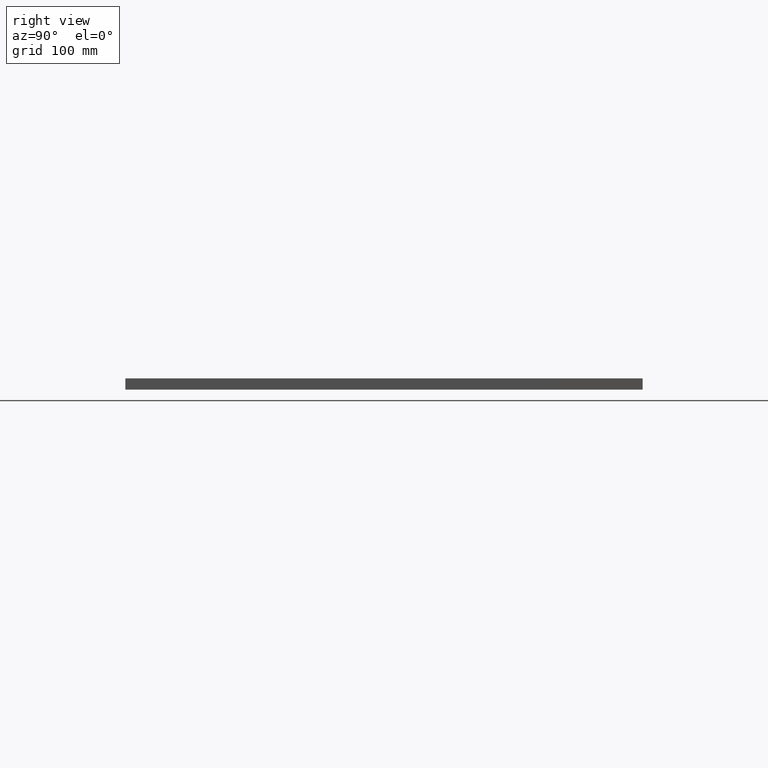
[diagram: clean part render]
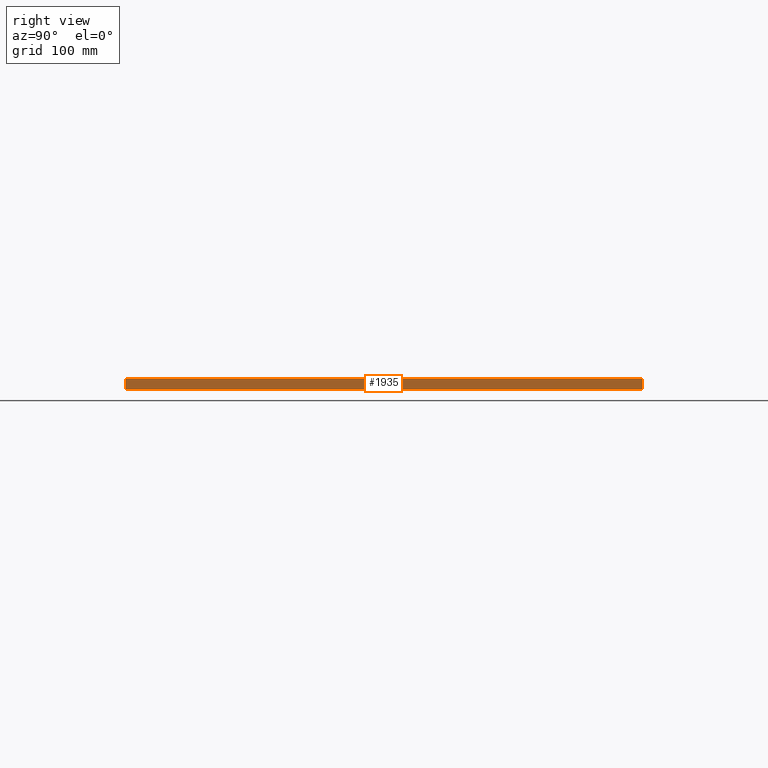
[diagram: same view with one face highlighted and labeled with its STEP entity id]
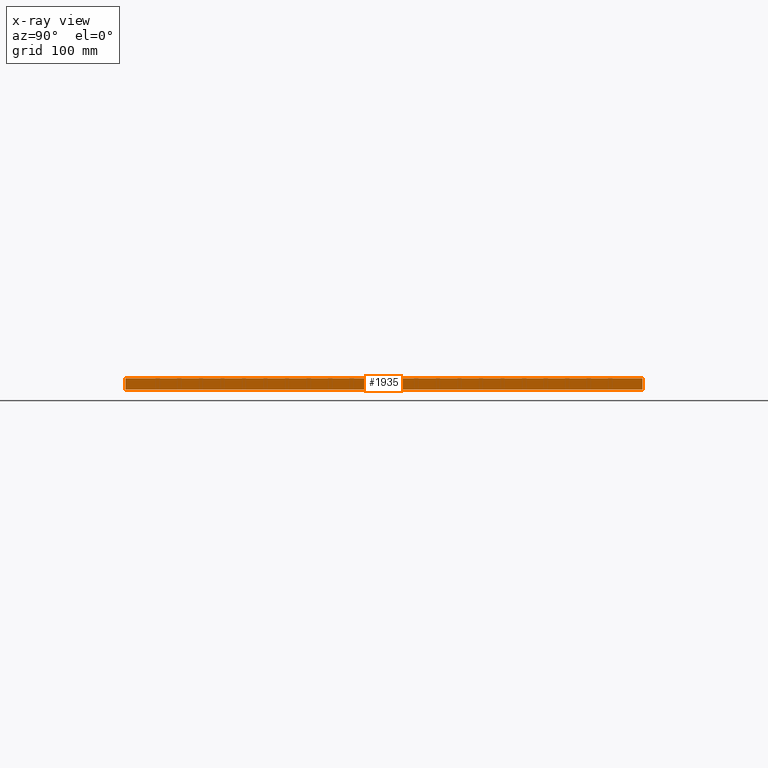
[diagram: x-ray of the same camera — body ghosted, the highlighted face saturated]
A machine part, right view. The second image highlights one B-rep face of the part: STEP entity #1935.
The next image is the same camera in x-ray: the body ghosted, the highlighted face saturated — about 0% of this face is hidden behind the body in this view.
In plain terms, the highlighted planar face has unit normal (-1, -0, 0).
Its self-contained STEP definition (entity closure, byte-faithful):
#156 = CARTESIAN_POINT ( 'NONE',  ( 300.0000000000000600, -299.9999999999999400, 13.00000000000000000 ) ) ;
#287 = EDGE_CURVE ( 'NONE', #5920, #21525, #28682, .T. ) ;
#407 = VECTOR ( 'NONE', #11675, 1000.000000000000000 ) ;
#1924 = PLANE ( 'NONE',  #9731 ) ;
#1935 = ADVANCED_FACE ( 'NONE', ( #17767 ), #1924, .F. ) ;
#5920 = VERTEX_POINT ( 'NONE', #29646 ) ;
#6539 = DIRECTION ( 'NONE',  ( -1.850371707708594300E-016, 1.000000000000000000, -0.0000000000000000000 ) ) ;
#6566 = ORIENTED_EDGE ( 'NONE', *, *, #287, .F. ) ;
#9013 = LINE ( 'NONE', #28723, #22906 ) ;
#9731 = AXIS2_PLACEMENT_3D ( 'NONE', #10159, #29684, #13089 ) ;
#10159 = CARTESIAN_POINT ( 'NONE',  ( 299.9999999999999400, 300.0000000000000600, 13.00000000000000000 ) ) ;
#11517 = CARTESIAN_POINT ( 'NONE',  ( 299.9999999999999400, 300.0000000000000600, 0.0000000000000000000 ) ) ;
#11675 = DIRECTION ( 'NONE',  ( -1.850371707708594300E-016, 1.000000000000000000, -0.0000000000000000000 ) ) ;
#11778 = CARTESIAN_POINT ( 'NONE',  ( 299.9999999999999400, 300.0000000000000600, 0.0000000000000000000 ) ) ;
#13089 = DIRECTION ( 'NONE',  ( 1.850371707708594800E-016, -1.000000000000000000, 0.0000000000000000000 ) ) ;
#13287 = EDGE_LOOP ( 'NONE', ( #25245, #6566, #26642, #20134 ) ) ;
#16075 = LINE ( 'NONE', #11778, #407 ) ;
#16975 = CARTESIAN_POINT ( 'NONE',  ( 300.0000000000000600, -299.9999999999999400, 13.00000000000000000 ) ) ;
#17767 = FACE_OUTER_BOUND ( 'NONE', #13287, .T. ) ;
#19333 = EDGE_CURVE ( 'NONE', #19769, #21525, #16075, .T. ) ;
#19769 = VERTEX_POINT ( 'NONE', #30302 ) ;
#20134 = ORIENTED_EDGE ( 'NONE', *, *, #21522, .T. ) ;
#21303 = VECTOR ( 'NONE', #30473, 1000.000000000000000 ) ;
#21522 = EDGE_CURVE ( 'NONE', #34581, #19769, #30201, .T. ) ;
#21525 = VERTEX_POINT ( 'NONE', #11517 ) ;
#21956 = VECTOR ( 'NONE', #28102, 1000.000000000000000 ) ;
#22906 = VECTOR ( 'NONE', #6539, 1000.000000000000000 ) ;
#25173 = EDGE_CURVE ( 'NONE', #34581, #5920, #9013, .T. ) ;
#25245 = ORIENTED_EDGE ( 'NONE', *, *, #19333, .T. ) ;
#26642 = ORIENTED_EDGE ( 'NONE', *, *, #25173, .F. ) ;
#28102 = DIRECTION ( 'NONE',  ( -0.0000000000000000000, -0.0000000000000000000, -1.000000000000000000 ) ) ;
#28682 = LINE ( 'NONE', #33037, #21303 ) ;
#28723 = CARTESIAN_POINT ( 'NONE',  ( 299.9999999999999400, 300.0000000000000600, 13.00000000000000000 ) ) ;
#29646 = CARTESIAN_POINT ( 'NONE',  ( 299.9999999999999400, 300.0000000000000600, 13.00000000000000000 ) ) ;
#29684 = DIRECTION ( 'NONE',  ( -1.000000000000000000, -1.850371707708594800E-016, 0.0000000000000000000 ) ) ;
#30201 = LINE ( 'NONE', #16975, #21956 ) ;
#30302 = CARTESIAN_POINT ( 'NONE',  ( 300.0000000000000600, -299.9999999999999400, 0.0000000000000000000 ) ) ;
#30473 = DIRECTION ( 'NONE',  ( -0.0000000000000000000, -0.0000000000000000000, -1.000000000000000000 ) ) ;
#33037 = CARTESIAN_POINT ( 'NONE',  ( 299.9999999999999400, 300.0000000000000600, 13.00000000000000000 ) ) ;
#34581 = VERTEX_POINT ( 'NONE', #156 ) ;